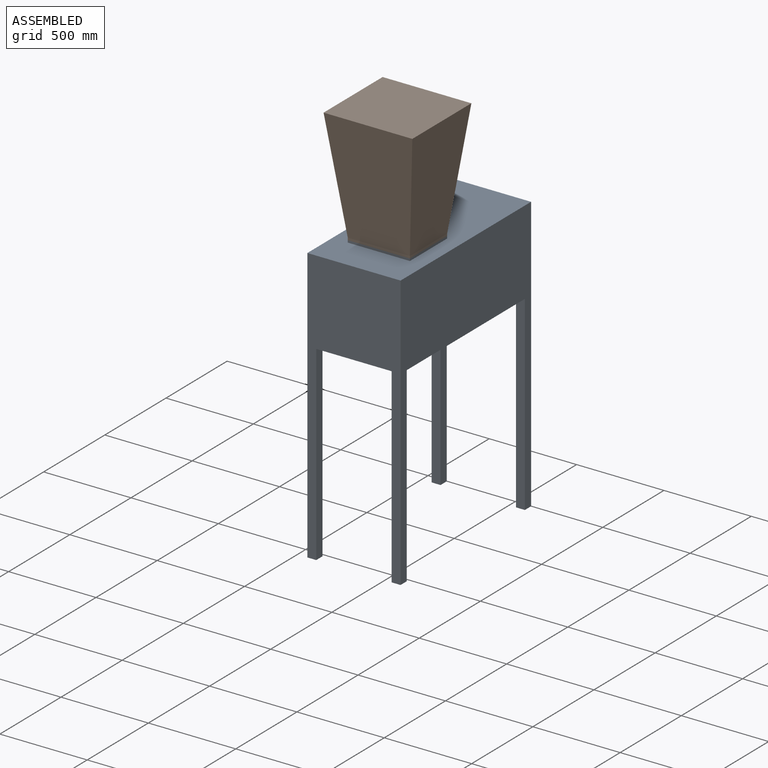
[diagram: assembled view]
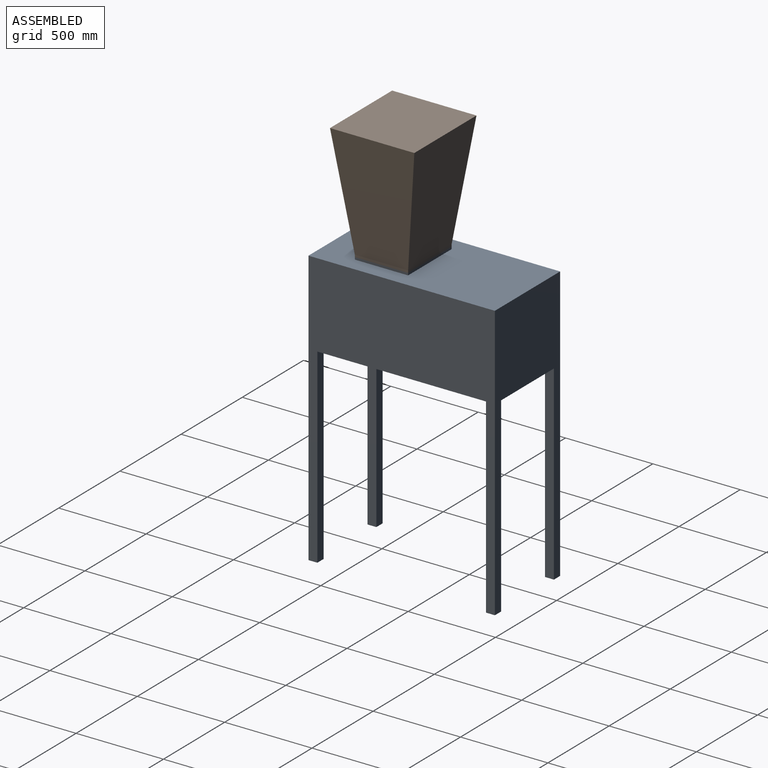
[diagram: assembled view, second angle]
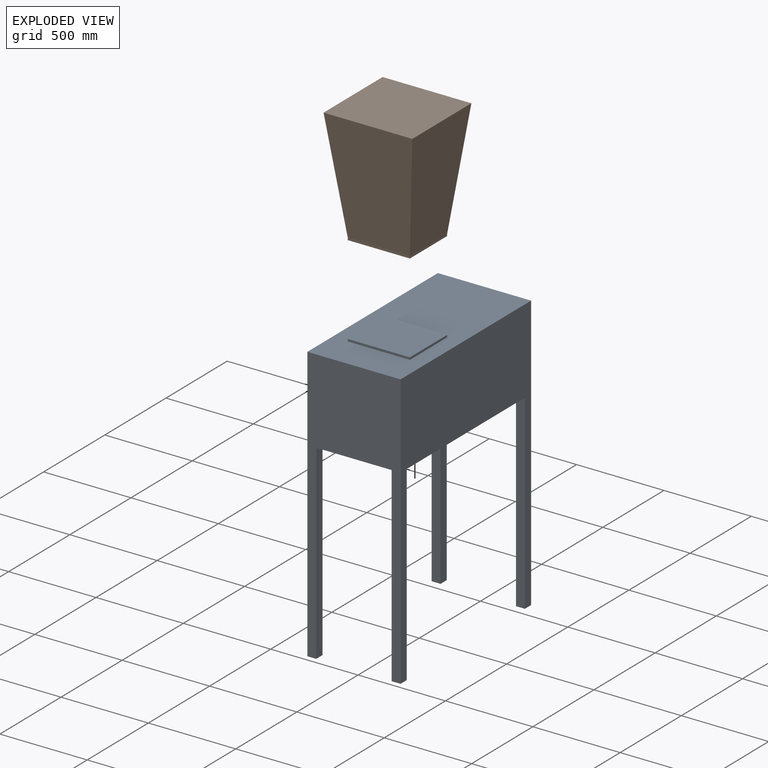
[diagram: exploded view]
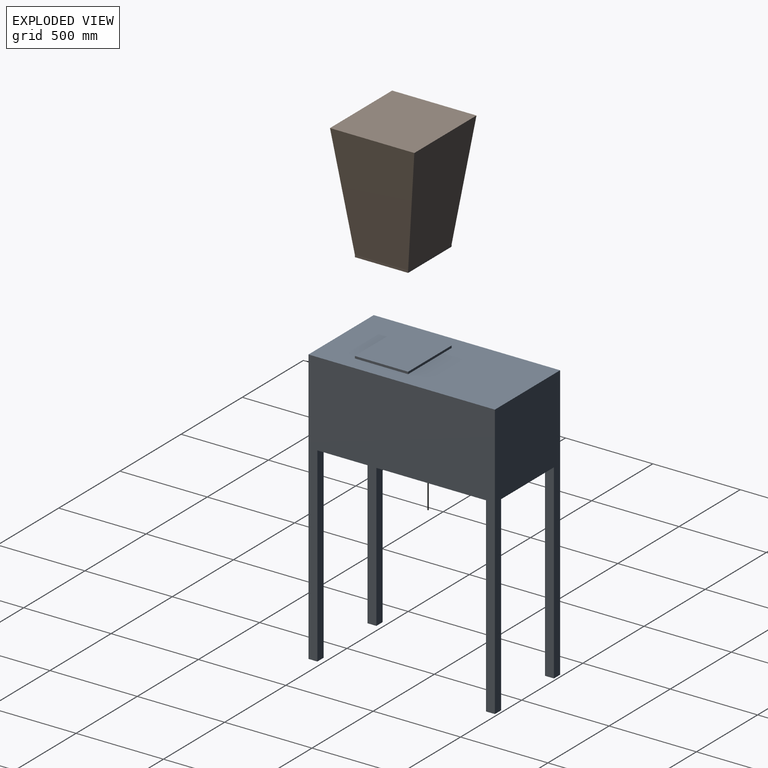
[diagram: exploded view, second angle]
ASSEMBLY  parts=2 mates=3
PART A: 23 faces, bbox 533.4x1066.8x1587.5 mm
  f0: plane 1066.8x533.4mm, normal (0,0,1), area 460644.2mm2, adj f1,f2,f3,f4,f18,f19,f20,f21
  f1: plane 1574.8x1066.8mm, normal (1,0,0), area 625805.2mm2, adj f0,f2,f4,f5,f9,f11,f12,f14
  f2: plane 1574.8x533.4mm, normal (0,1,0), area 368386.4mm2, adj f0,f1,f3,f5,f13,f14,f16,f17
  f3: plane 1574.8x1066.8mm, normal (-1,0,0), area 625805.2mm2, adj f0,f2,f4,f5,f6,f8,f15,f17
  f4: plane 1574.8x533.4mm, normal (0,-1,0), area 368386.4mm2, adj f0,f1,f3,f5,f7,f8,f10,f11
  f5: plane 1066.8x533.4mm, normal (0,0,-1), area 558708.6mm2, adj f1,f2,f3,f4,f6,f7,f9,f10
  f6: plane 1092.2x50.8mm, normal (0,1,0), area 55483.8mm2, adj f3,f5,f7,f8
  f7: plane 1092.2x50.8mm, normal (1,0,0), area 55483.8mm2, adj f4,f5,f6,f8
  f8: plane 50.8x50.8mm, normal (0,0,-1), area 2580.6mm2, adj f3,f4,f6,f7
  f9: plane 1092.2x50.8mm, normal (0,1,0), area 55483.8mm2, adj f1,f5,f10,f11
  f10: plane 1092.2x50.8mm, normal (-1,0,0), area 55483.8mm2, adj f4,f5,f9,f11
  f11: plane 50.8x50.8mm, normal (0,0,-1), area 2580.6mm2, adj f1,f4,f9,f10
  f12: plane 1092.2x50.8mm, normal (0,-1,0), area 55483.8mm2, adj f1,f5,f13,f14
  f13: plane 1092.2x50.8mm, normal (-1,0,0), area 55483.8mm2, adj f2,f5,f12,f14
  f14: plane 50.8x50.8mm, normal (0,0,-1), area 2580.6mm2, adj f1,f2,f12,f13
  f15: plane 1092.2x50.8mm, normal (0,-1,0), area 55483.8mm2, adj f3,f5,f16,f17
  f16: plane 1092.2x50.8mm, normal (1,0,0), area 55483.8mm2, adj f2,f5,f15,f17
  f17: plane 50.8x50.8mm, normal (0,0,-1), area 2580.6mm2, adj f2,f3,f15,f16
  f18: plane 304.8x12.7mm, normal (-1,0,0), area 3871mm2, adj f0,f19,f21,f22
  f19: plane 355.6x12.7mm, normal (0,-1,0), area 4516.1mm2, adj f0,f18,f20,f22
  f20: plane 304.8x12.7mm, normal (1,0,0), area 3871mm2, adj f0,f19,f21,f22
  f21: plane 355.6x12.7mm, normal (0,1,0), area 4516.1mm2, adj f0,f18,f20,f22
  f22: plane 355.6x304.8mm, normal (0,0,1), area 108386.9mm2, adj f18,f19,f20,f21
PART B: 10 faces, bbox 508x482.6x673.1 mm
  f0: plane 508x482.6mm, normal (0,0,1), area 245160.8mm2, adj f1,f2,f3,f4
  f1: plane 660.4x508mm, normal (0,0.99,-0.13), area 287732.9mm2, adj f0,f2,f4,f8
  f2: plane 660.4x482.6mm, normal (-0.99,0,-0.11), area 261724.5mm2, adj f0,f1,f3,f7
  f3: plane 660.4x508mm, normal (0,-0.99,-0.13), area 287732.9mm2, adj f0,f2,f4,f6
  f4: plane 660.4x482.6mm, normal (0.99,0,-0.11), area 261724.5mm2, adj f0,f1,f3,f5
  f5: plane 304.8x12.7mm, normal (1,0,0), area 3871mm2, adj f4,f6,f8,f9
  f6: plane 355.6x12.7mm, normal (0,-1,0), area 4516.1mm2, adj f3,f5,f7,f9
  f7: plane 304.8x12.7mm, normal (-1,0,0), area 3871mm2, adj f2,f6,f8,f9
  f8: plane 355.6x12.7mm, normal (0,1,0), area 4516.1mm2, adj f1,f5,f7,f9
  f9: plane 355.6x304.8mm, normal (0,0,-1), area 108386.9mm2, adj f5,f6,f7,f8
PLACE A at identity fixed
PLACE B t=(0,-177.8,508)mm
MATE planar B.f6 <-> A.f19  axis (0,-1,0) through (0,-330.2,501.65)mm
MATE planar B.f5 <-> A.f20  axis (1,0,0) through (177.8,-177.8,501.65)mm
MATE planar A.f22 <-> B.f9  axis (0,0,1) through (0,-177.8,495.3)mm
